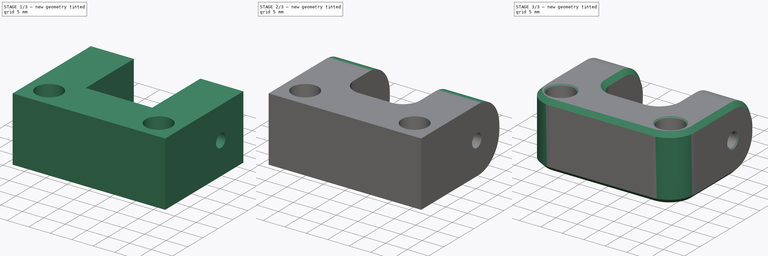
[diagram: build sequence overview — one tinted view per stage of 3, left to right]
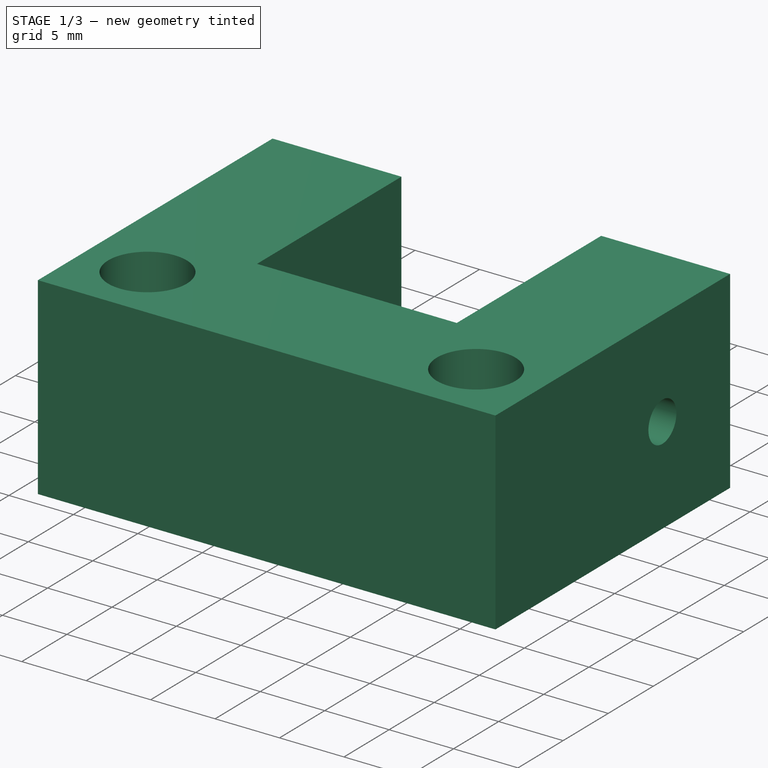
[diagram: stage 1 of 3 — iso view after this stage's code; geometry added in this stage tinted green]
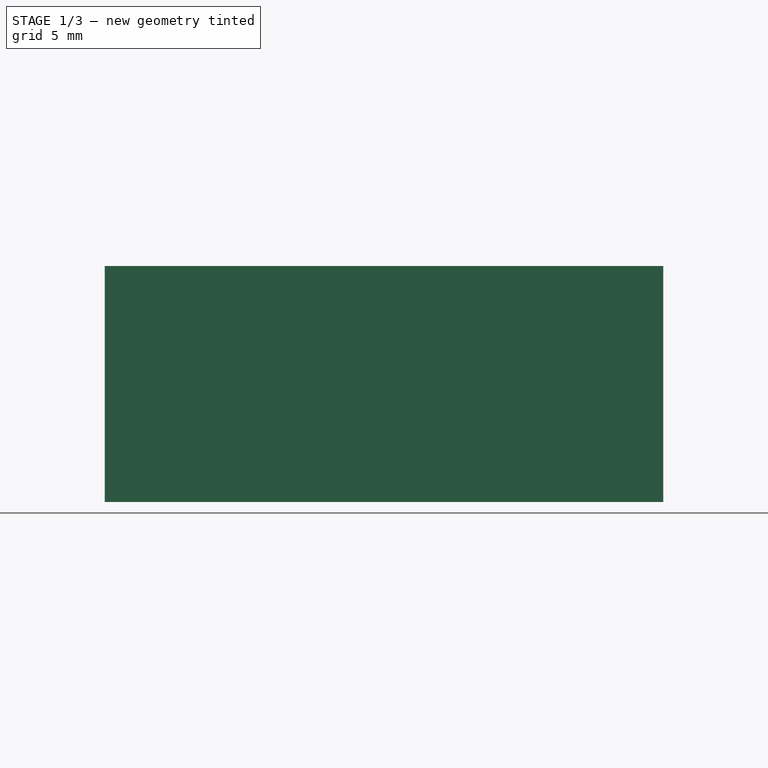
[diagram: stage 1 of 3 — front view after this stage's code; geometry added in this stage tinted green]
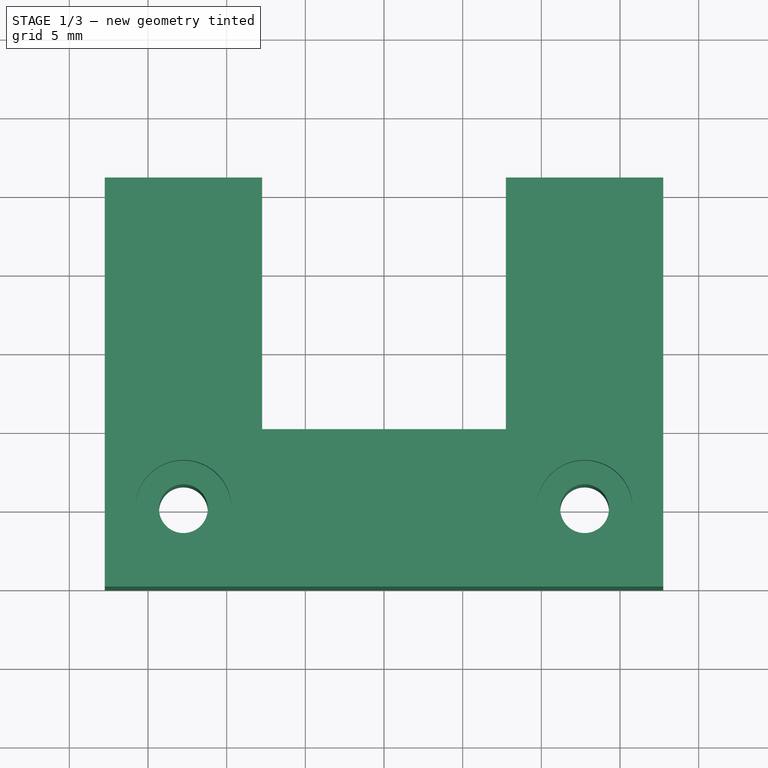
[diagram: stage 1 of 3 — top view after this stage's code; geometry added in this stage tinted green]
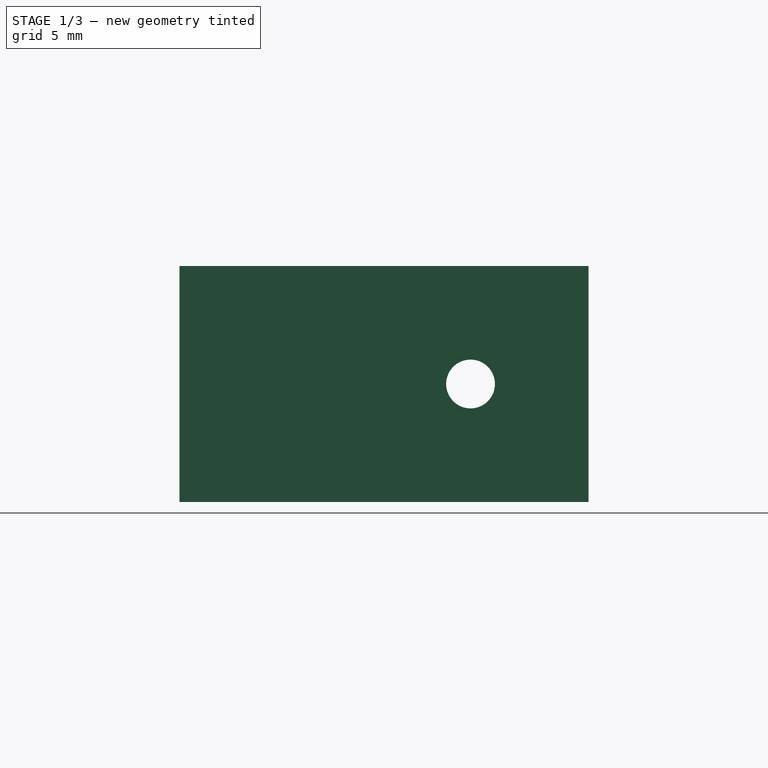
[diagram: stage 1 of 3 — right view after this stage's code; geometry added in this stage tinted green]
FCSTD DOCUMENT  (FreeCAD 0.22R38314 (Git))
Label: Hinge
License: All rights reserved
LicenseURL: https://en.wikipedia.org/wiki/All_rights_reserved
objects: Sketcher::SketchObject×3, PartDesign::Fillet×3, PartDesign::Hole×2, PartDesign::Chamfer×2, PartDesign::Pad×1, PartDesign::Body×1
note: 28 computed .brp shape members not serialized (recipe doc carries the construction recipe); baked Part::Feature solids carry a one-line shape summary decoded from their .brp

FEATURE [Sketcher::SketchObject] Sketch  label="Main_Sketch"
  AttachmentSupport = -> [XY_Plane]
  FullyConstrained = true
  MapMode = 5
  sketch-geometry (10):
    g0: LineSegment StartX=-7.75 StartY=16 StartZ=0 EndX=-7.75 EndY=0 EndZ=0
    g1: LineSegment StartX=-7.75 StartY=0 StartZ=0 EndX=0 EndY=0 EndZ=0
    g2: LineSegment StartX=-7.75 StartY=16 StartZ=0 EndX=-17.75 EndY=16 EndZ=0
    g3: LineSegment StartX=-17.75 StartY=16 StartZ=0 EndX=-17.75 EndY=-10 EndZ=0
    g4: LineSegment StartX=-17.75 StartY=-10 StartZ=0 EndX=0 EndY=-10 EndZ=0
    g5: LineSegment StartX=7.75 StartY=16 StartZ=0 EndX=7.75 EndY=0 EndZ=0
    g6: LineSegment StartX=7.75 StartY=0 StartZ=0 EndX=0 EndY=0 EndZ=0
    g7: LineSegment StartX=7.75 StartY=16 StartZ=0 EndX=17.75 EndY=16 EndZ=0
    g8: LineSegment StartX=17.75 StartY=16 StartZ=0 EndX=17.75 EndY=-10 EndZ=0
    g9: LineSegment StartX=17.75 StartY=-10 StartZ=0 EndX=0 EndY=-10 EndZ=0
  constraints (29):
    c: PointOnObject(g0,g-1)
    c: Vertical(g0)
    c: Coincident(g1,g0)
    c: Coincident(g1,g-1)
    c: Coincident(g2,g0)
    c: Horizontal(g2)
    c: Vertical(g3)
    c: PointOnObject(g4,g-2)
    c: Horizontal(g4)
    c: Coincident(g3,g2)
    c: Coincident(g3,g4)
    c: Distance(g1,g4) = 10
    c: DistanceX(g2,g2) = 10
    c: DistanceX(g1,g1) = 7.75
    c: DistanceY(g0,g0) = 16
    c: Vertical(g5)
    c: Coincident(g6,g5)
    c: Coincident(g7,g5)
    c: Horizontal(g7)
    c: Vertical(g8)
    c: Horizontal(g9)
    c: Coincident(g8,g7)
    c: Coincident(g8,g9)
    c: Distance(g6,g9) = 10
    c: Coincident(g1,g6)
    c: Coincident(g9,g4)
    c: Equal(g1,g6)
    c: Equal(g9,g4)
    c: Equal(g5,g0)
FEATURE [PartDesign::Pad] Pad  label="Main_Pad"
  Direction = (0,0,1)
  Length = 15
  Length2 = 10
  Profile = -> Sketch
  ReferenceAxis = -> Sketch [N_Axis]
  Refine = true
  Suppressed = false
  Type = 0
FEATURE [Sketcher::SketchObject] Sketch001  label="Hinge_Sketch"
  AttachmentSupport = -> [Pad]
  ExternalGeometry = -> [Pad]
  FullyConstrained = false
  MapMode = 5
  Placement = pos=(-17.75,0,0) rot=(0.57735,-0.57735,-0.57735;2.0944rad)
  sketch-geometry (3):
    g0: LineSegment StartX=-16 StartY=0 StartZ=0 EndX=-8.5 EndY=7.5 EndZ=0
    g1: LineSegment StartX=-8.5 StartY=7.5 StartZ=0 EndX=-16 EndY=15 EndZ=0
    g2: Circle CenterX=-8.5 CenterY=7.5 CenterZ=0 NormalX=0 NormalY=0 NormalZ=1 AngleXU=0 Radius=0.593476
  constraints (6):
    c: Coincident(g0,g-5)
    c: Coincident(g1,g0)
    c: Coincident(g1,g-4)
    c: Equal(g0,g1)
    c: Angle(g1,g0) = 1.5708
    c: Coincident(g2,g0)
FEATURE [Sketcher::SketchObject] Sketch002  label="Mount_Sketch"
  AttachmentSupport = -> [Pad]
  ExternalGeometry = -> [Pad]
  FullyConstrained = false
  MapMode = 5
  Placement = pos=(0,0,15) rot=(0,0,1;0rad)
  sketch-geometry (6):
    g0: LineSegment StartX=-17.75 StartY=-10 StartZ=0 EndX=-12.75 EndY=-5 EndZ=0
    g1: LineSegment StartX=-12.75 StartY=-5 StartZ=0 EndX=-7.75 EndY=0 EndZ=0
    g2: LineSegment StartX=7.75 StartY=0 StartZ=0 EndX=12.75 EndY=-5 EndZ=0
    g3: LineSegment StartX=12.75 StartY=-5 StartZ=0 EndX=17.75 EndY=-10 EndZ=0
    g4: Circle CenterX=-12.75 CenterY=-5 CenterZ=0 NormalX=0 NormalY=0 NormalZ=1 AngleXU=0 Radius=1.12187
    g5: Circle CenterX=12.75 CenterY=-5 CenterZ=0 NormalX=0 NormalY=0 NormalZ=1 AngleXU=0 Radius=0.88605
  constraints (12):
    c: Coincident(g0,g-3)
    c: Coincident(g1,g0)
    c: Coincident(g1,g-4)
    c: Coincident(g2,g-5)
    c: Coincident(g3,g2)
    c: Coincident(g3,g-6)
    c: Equal(g3,g2)
    c: Equal(g0,g1)
    c: Parallel(g0,g1)
    c: Parallel(g2,g3)
    c: Coincident(g4,g0)
    c: Coincident(g5,g2)
FEATURE [PartDesign::Hole] Hole  label="Mount_Hole"
  BaseFeature = -> Pad
  CustomThreadClearance = 0
  Depth = 93.9083
  DepthType = 1
  Diameter = 3.1
  DrillForDepth = false
  DrillPoint = 1
  DrillPointAngle = 118
  HoleCutCountersinkAngle = 90
  HoleCutCustomValues = false
  HoleCutDepth = 3.2
  HoleCutDiameter = 6.1
  HoleCutType = 1
  ModelThread = false
  Profile = -> Sketch002 [Edge1,Edge2]
  Refine = true
  Suppressed = false
  Tapered = false
  TaperedAngle = 90
  ThreadClass = 0
  ThreadDepth = 93.9083
  ThreadDepthType = 0
  ThreadDirection = 0
  ThreadFit = 0
  ThreadSize = 0
  ThreadType = 0
  Threaded = false
  UseCustomThreadClearance = false
FEATURE [PartDesign::Hole] Hole001  label="Hinge_Hole"
  BaseFeature = -> Hole
  CustomThreadClearance = 0
  Depth = 93.9083
  DepthType = 1
  Diameter = 3.1
  DrillForDepth = false
  DrillPoint = 1
  DrillPointAngle = 118
  HoleCutCountersinkAngle = 90
  HoleCutCustomValues = false
  HoleCutDepth = 3.1
  HoleCutDiameter = 6.1
  HoleCutType = 1
  ModelThread = false
  Profile = -> Sketch001 [Edge1]
  Refine = true
  Suppressed = false
  Tapered = false
  TaperedAngle = 90
  ThreadClass = 0
  ThreadDepth = 93.9083
  ThreadDepthType = 0
  ThreadDirection = 0
  ThreadFit = 0
  ThreadSize = 0
  ThreadType = 0
  Threaded = false
  UseCustomThreadClearance = false
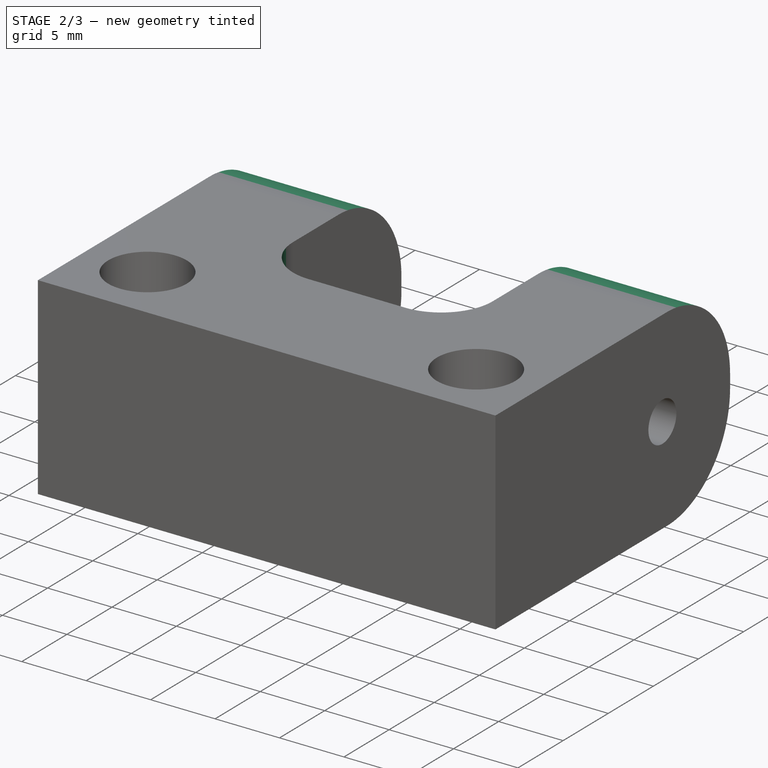
[diagram: stage 2 of 3 — iso view after this stage's code; geometry added in this stage tinted green]
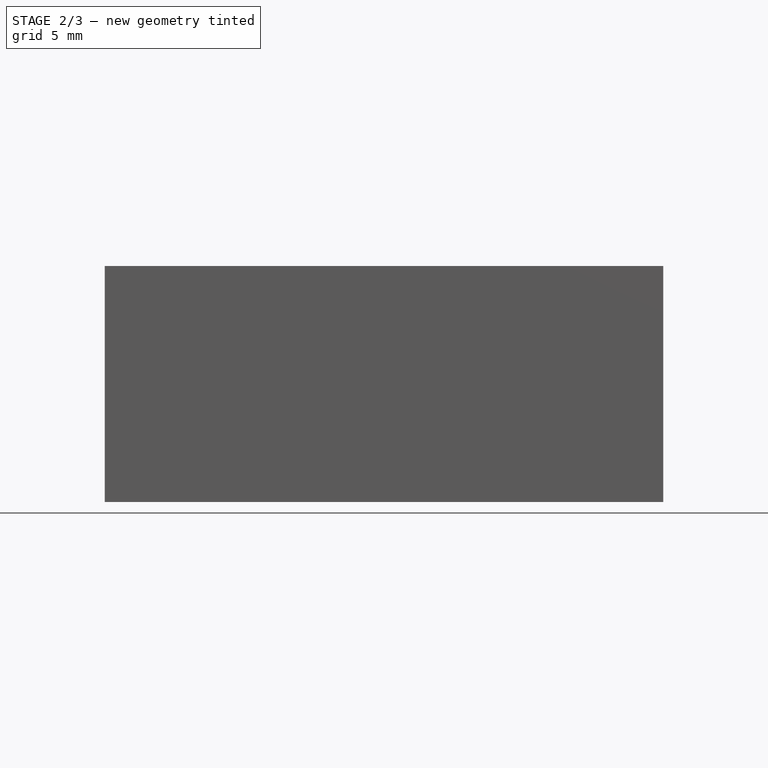
[diagram: stage 2 of 3 — front view after this stage's code; geometry added in this stage tinted green]
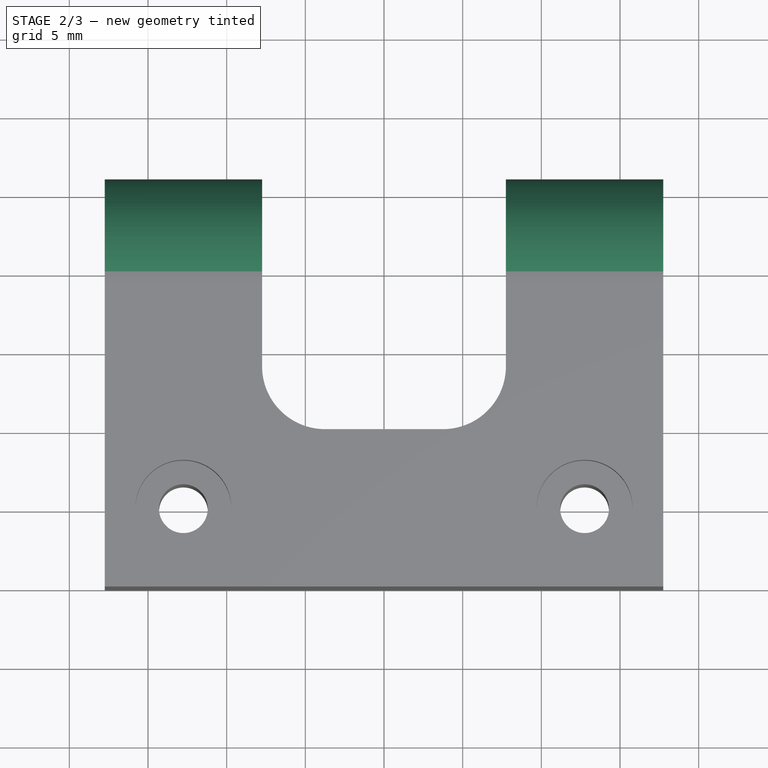
[diagram: stage 2 of 3 — top view after this stage's code; geometry added in this stage tinted green]
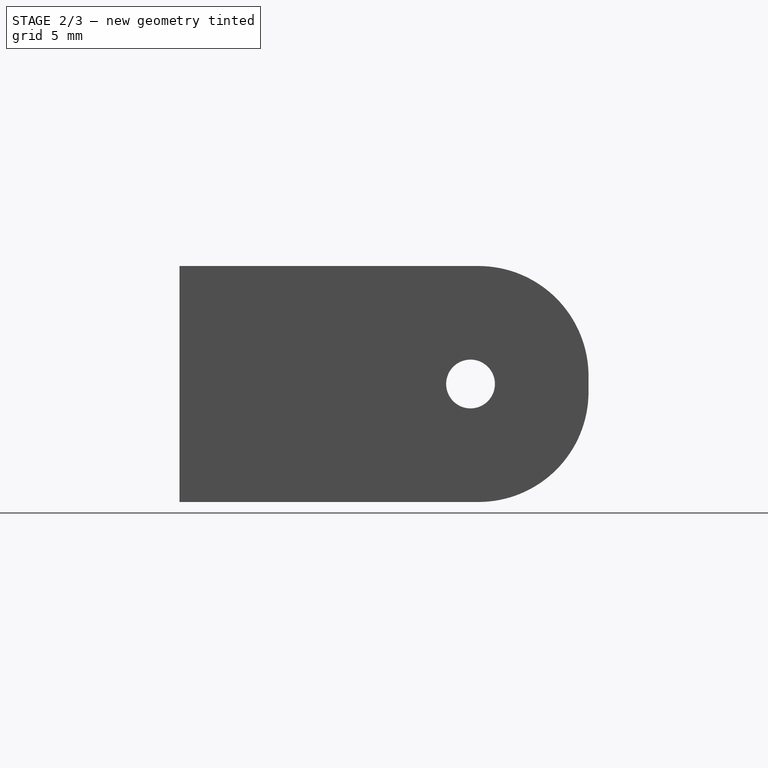
[diagram: stage 2 of 3 — right view after this stage's code; geometry added in this stage tinted green]
FEATURE [PartDesign::Fillet] Fillet
  Base = -> Hole001 [Edge24,Edge17,Edge3,Edge4]
  BaseFeature = -> Hole001
  Radius = 7
  Refine = true
  SupportTransform = false
  Suppressed = false
  UseAllEdges = false
FEATURE [PartDesign::Fillet] Fillet001  label="Inside_Radius"
  Base = -> Fillet [Edge33,Edge9]
  BaseFeature = -> Fillet
  Radius = 4
  Refine = true
  SupportTransform = false
  Suppressed = false
  UseAllEdges = false
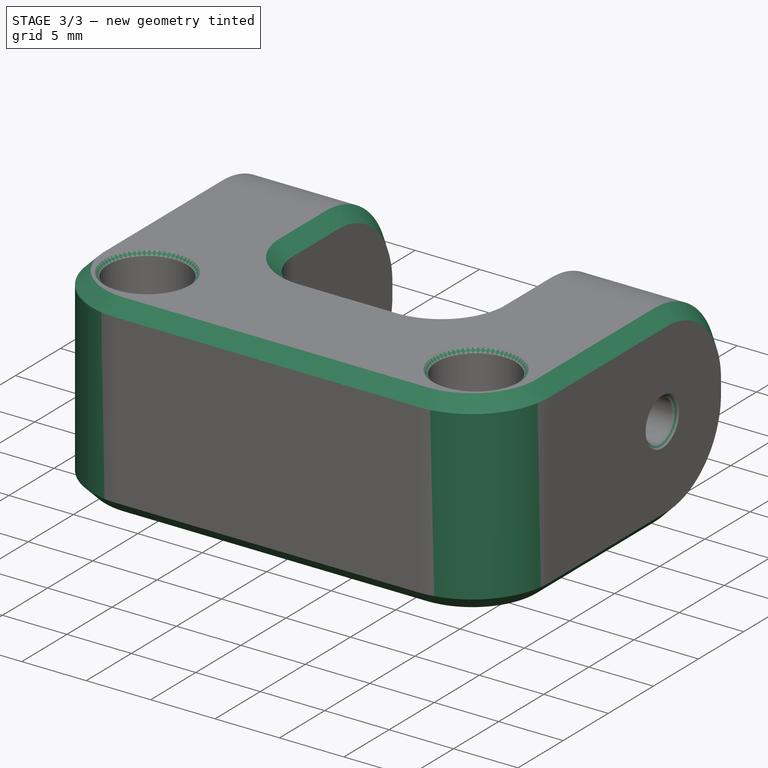
[diagram: stage 3 of 3 — iso view after this stage's code; geometry added in this stage tinted green]
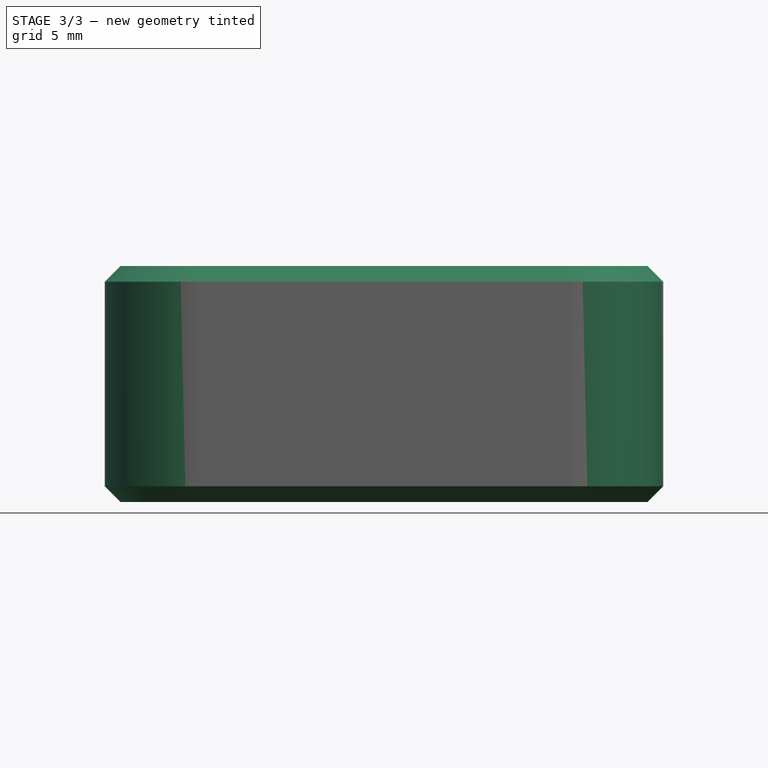
[diagram: stage 3 of 3 — front view after this stage's code; geometry added in this stage tinted green]
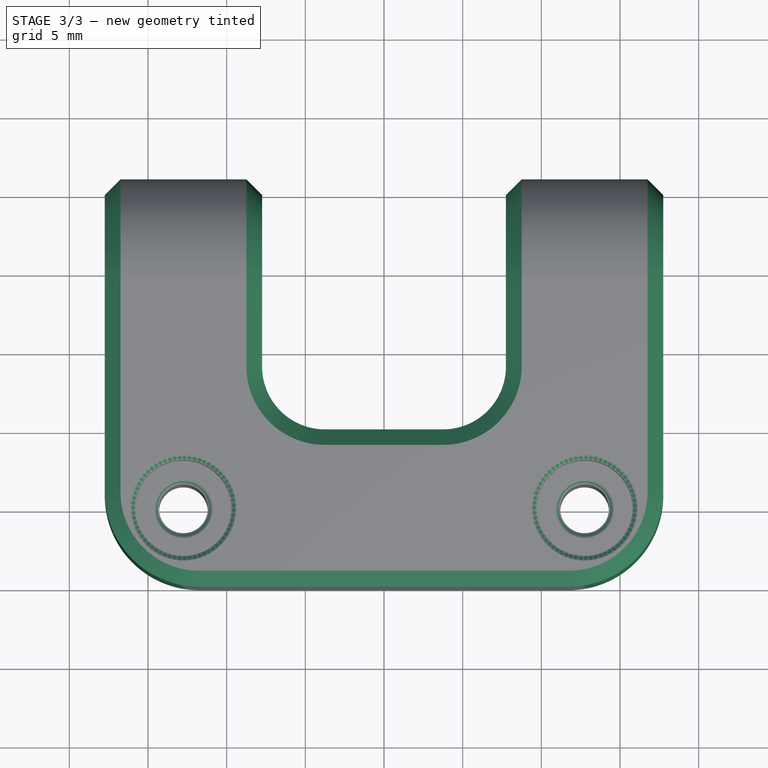
[diagram: stage 3 of 3 — top view after this stage's code; geometry added in this stage tinted green]
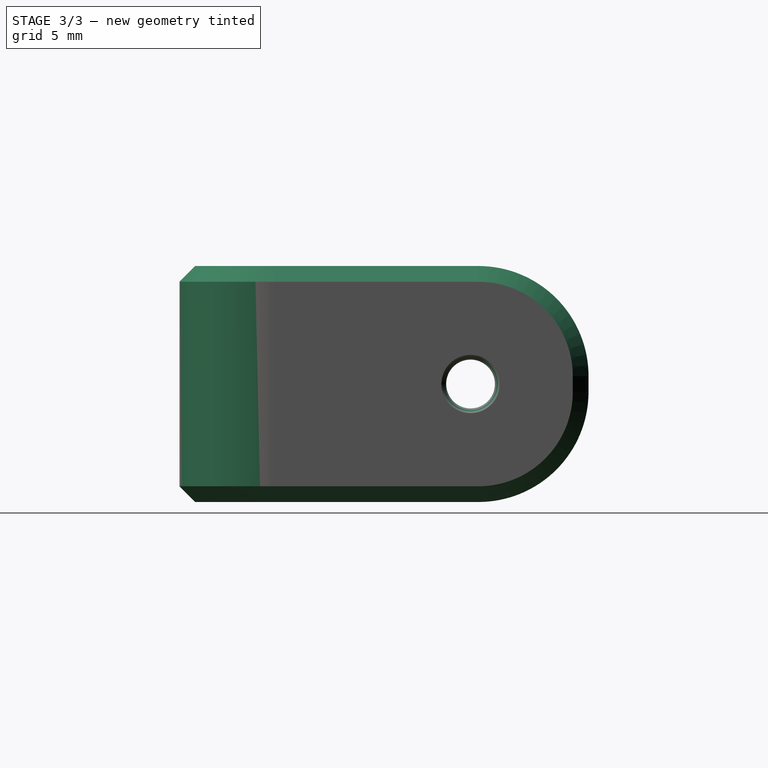
[diagram: stage 3 of 3 — right view after this stage's code; geometry added in this stage tinted green]
FEATURE [PartDesign::Fillet] Fillet002  label="Outsied_Radius"
  Base = -> Fillet001 [Edge41,Edge39]
  BaseFeature = -> Fillet001
  Radius = 6
  Refine = true
  SupportTransform = false
  Suppressed = false
  UseAllEdges = false
FEATURE [PartDesign::Chamfer] Chamfer  label="Edges_Chamfer"
  Angle = 45
  Base = -> Fillet002 [Edge37,Edge39,Edge33,Edge25,Edge6,Edge8,Edge36,Edge49,Edge47,Edge46,Edge41,Edge35,Edge28,Edge30,Edge23,Edge5,Edge19,Edge17,Edge22,Edge4,Edge2,Vertex31,Edge38,Edge48,Edge43,Edge12,Edge11,Edge9,Edge7,Edge16,Vertex16,Edge18,Edge29,Edge1]
  BaseFeature = -> Fillet002
  ChamferType = 0
  FlipDirection = false
  Refine = true
  Size = 1
  Size2 = 1
  SupportTransform = false
  Suppressed = false
  UseAllEdges = false
FEATURE [PartDesign::Chamfer] Chamfer001  label="Holes_Chamfer"
  Angle = 45
  Base = -> Chamfer [Edge14,Edge13,Edge46,Edge132,Vertex31,Edge44,Edge130,Edge122,Edge86,Edge81,Edge63,Edge58]
  BaseFeature = -> Chamfer
  ChamferType = 0
  FlipDirection = false
  Refine = true
  Size = 0.3
  Size2 = 1
  SupportTransform = false
  Suppressed = false
  UseAllEdges = false
FEATURE [PartDesign::Body] Body
  AllowCompound = false
  Group = -> [Sketch,Pad,Sketch001,Sketch002,Hole,Hole001,Fillet,Fillet001,Fillet002,Chamfer,Chamfer001]
  Origin = -> Origin
  Tip = -> Chamfer001
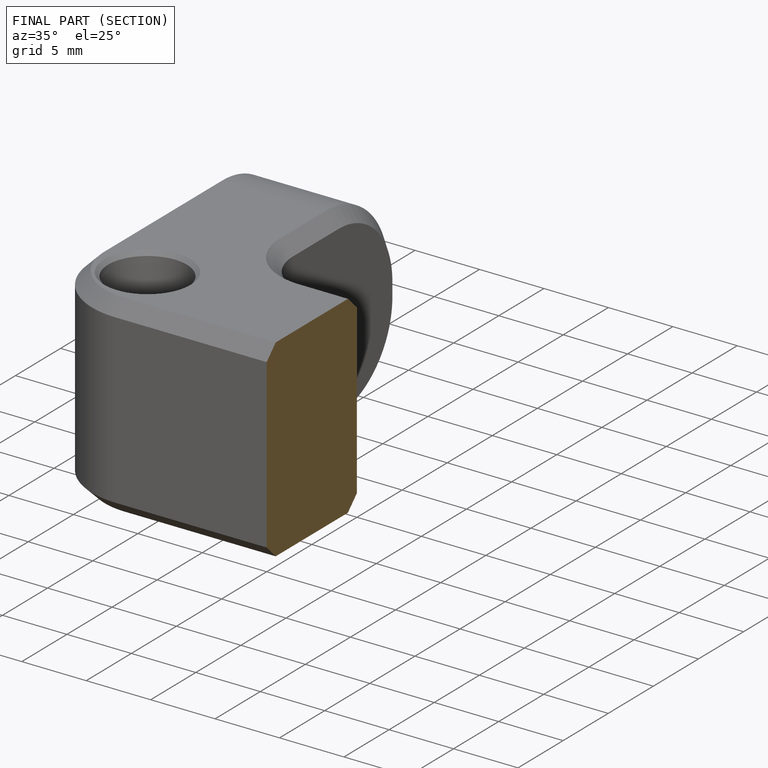
[diagram: finished part — half-section view (interior)]
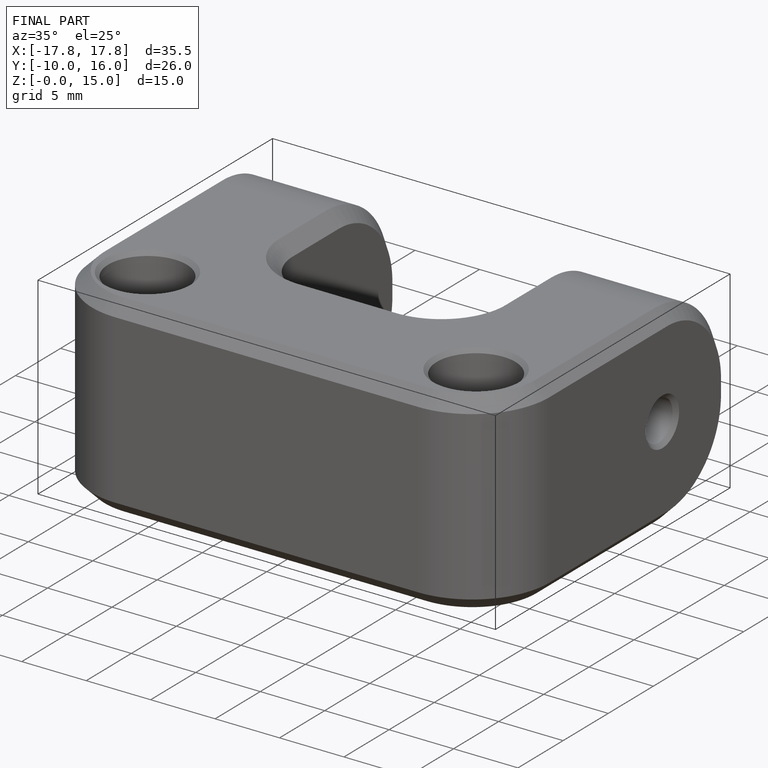
[diagram: finished part — iso view with bounding-box wireframe]
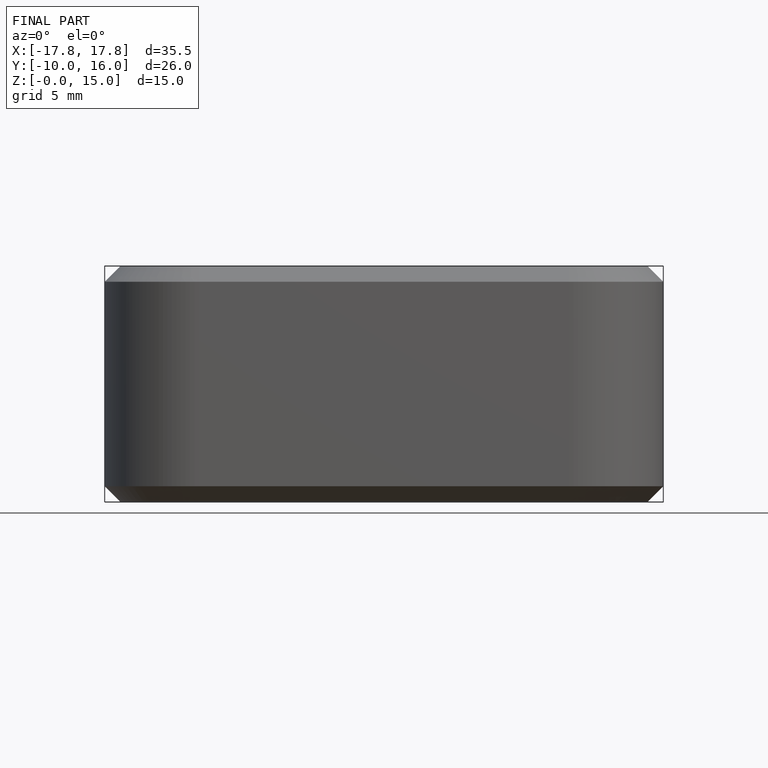
[diagram: finished part — front view with bounding-box wireframe]
